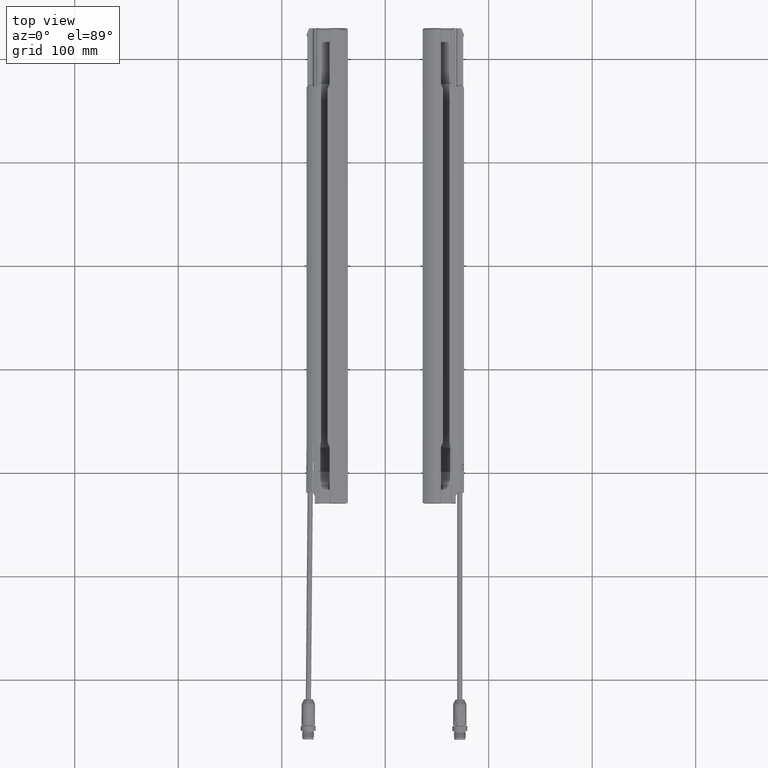
[diagram: clean part render]
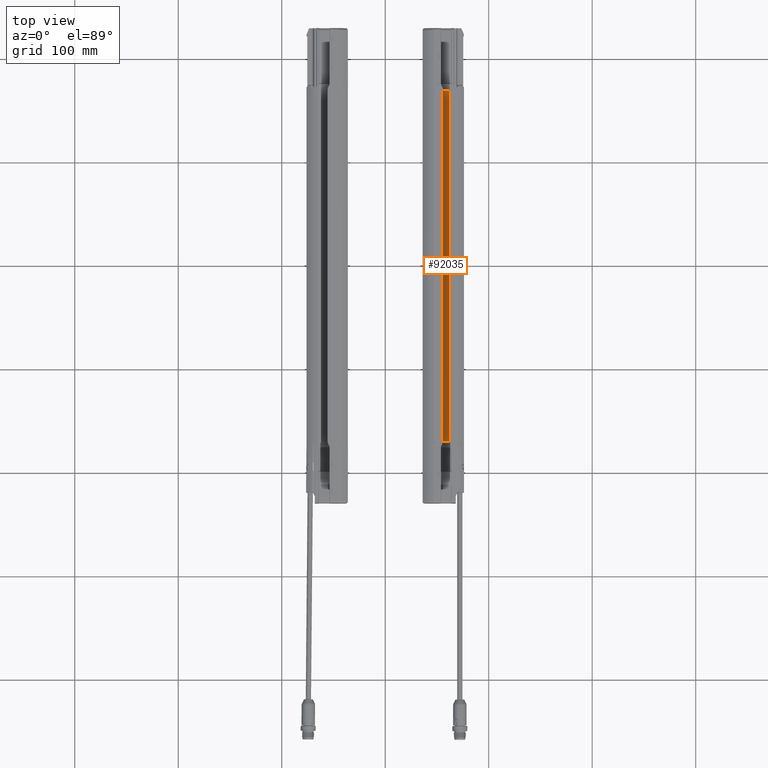
[diagram: same view with one face highlighted and labeled with its STEP entity id]
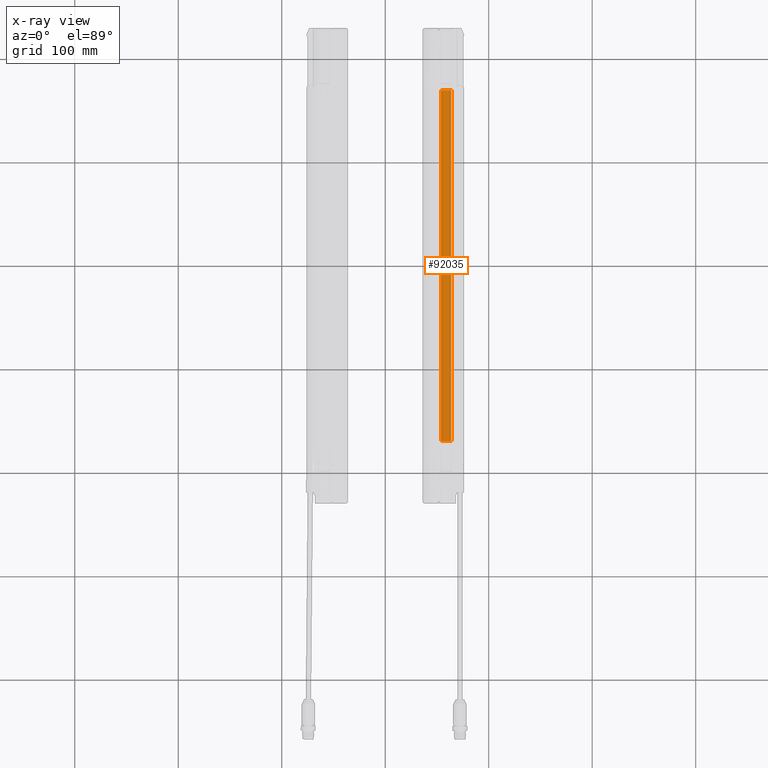
[diagram: x-ray of the same camera — body ghosted, the highlighted face saturated]
A machine part, top view. The second image highlights one B-rep face of the part: STEP entity #92035.
The next image is the same camera in x-ray: the body ghosted, the highlighted face saturated — about 0% of this face is hidden behind the body in this view.
In plain terms, the highlighted planar face has unit normal (-0, -0, 1).
Its self-contained STEP definition (entity closure, byte-faithful):
#158 = CARTESIAN_POINT ( 'NONE',  ( 2.996062992125886115, 6.673228346456693494, 0.5334645669291842029 ) ) ;
#861 = ORIENTED_EDGE ( 'NONE', *, *, #78733, .T. ) ;
#6569 = LINE ( 'NONE', #85802, #70171 ) ;
#8897 = DIRECTION ( 'NONE',  ( 1.000000000000000000, 1.526109387071235061E-14, 0.000000000000000000 ) ) ;
#11977 = VECTOR ( 'NONE', #84289, 39.37007874015748143 ) ;
#14382 = DIRECTION ( 'NONE',  ( -1.652117596168389975E-16, -2.521312172058144942E-30, 1.000000000000000000 ) ) ;
#17118 = LINE ( 'NONE', #26868, #65240 ) ;
#21029 = FACE_OUTER_BOUND ( 'NONE', #39818, .T. ) ;
#26868 = CARTESIAN_POINT ( 'NONE',  ( 2.996062992126090840, -6.673228346456693494, 0.5334645669291842029 ) ) ;
#29220 = VERTEX_POINT ( 'NONE', #34343 ) ;
#29707 = VERTEX_POINT ( 'NONE', #34596 ) ;
#34343 = CARTESIAN_POINT ( 'NONE',  ( 2.513779527559161675, -6.673228346456693494, 0.5334645669291842029 ) ) ;
#34596 = CARTESIAN_POINT ( 'NONE',  ( 2.120078740157586683, -6.673228346456693494, 0.5334645669291842029 ) ) ;
#35000 = VERTEX_POINT ( 'NONE', #48517 ) ;
#39818 = EDGE_LOOP ( 'NONE', ( #64457, #861, #45539, #61041 ) ) ;
#40122 = EDGE_CURVE ( 'NONE', #29220, #29707, #17118, .T. ) ;
#41791 = DIRECTION ( 'NONE',  ( -1.000000000000000000, -1.526109387071235061E-14, 0.000000000000000000 ) ) ;
#45539 = ORIENTED_EDGE ( 'NONE', *, *, #40122, .F. ) ;
#46447 = AXIS2_PLACEMENT_3D ( 'NONE', #59592, #14382, #82787 ) ;
#48517 = CARTESIAN_POINT ( 'NONE',  ( 2.120078740157381958, 6.673228346456693494, 0.5334645669291842029 ) ) ;
#52503 = EDGE_CURVE ( 'NONE', #35000, #100305, #101531, .T. ) ;
#59592 = CARTESIAN_POINT ( 'NONE',  ( 2.523622047242216393, 123.2480314960629926, 0.5334645669291842029 ) ) ;
#61041 = ORIENTED_EDGE ( 'NONE', *, *, #89735, .T. ) ;
#64457 = ORIENTED_EDGE ( 'NONE', *, *, #52503, .F. ) ;
#65240 = VECTOR ( 'NONE', #41791, 39.37007874015748143 ) ;
#67342 = PLANE ( 'NONE',  #46447 ) ;
#68252 = VECTOR ( 'NONE', #8897, 39.37007874015748143 ) ;
#68832 = CARTESIAN_POINT ( 'NONE',  ( 2.513779527557177040, 123.2480314960629926, 0.5334645669291842029 ) ) ;
#70171 = VECTOR ( 'NONE', #99700, 39.37007874015748143 ) ;
#76573 = LINE ( 'NONE', #68832, #11977 ) ;
#78733 = EDGE_CURVE ( 'NONE', #35000, #29707, #6569, .T. ) ;
#79741 = CARTESIAN_POINT ( 'NONE',  ( 2.513779527558956506, 6.673228346456693494, 0.5334645669291842029 ) ) ;
#82787 = DIRECTION ( 'NONE',  ( 1.000000000000000000, 0.000000000000000000, 1.652117596168389975E-16 ) ) ;
#84289 = DIRECTION ( 'NONE',  ( -1.526109387071235061E-14, 1.000000000000000000, 0.000000000000000000 ) ) ;
#85802 = CARTESIAN_POINT ( 'NONE',  ( 2.120078740155602492, 123.2480314960629926, 0.5334645669291842029 ) ) ;
#89735 = EDGE_CURVE ( 'NONE', #29220, #100305, #76573, .T. ) ;
#92035 = ADVANCED_FACE ( 'NONE', ( #21029 ), #67342, .T. ) ;
#99700 = DIRECTION ( 'NONE',  ( 1.526109387071235061E-14, -1.000000000000000000, 0.000000000000000000 ) ) ;
#100305 = VERTEX_POINT ( 'NONE', #79741 ) ;
#101531 = LINE ( 'NONE', #158, #68252 ) ;